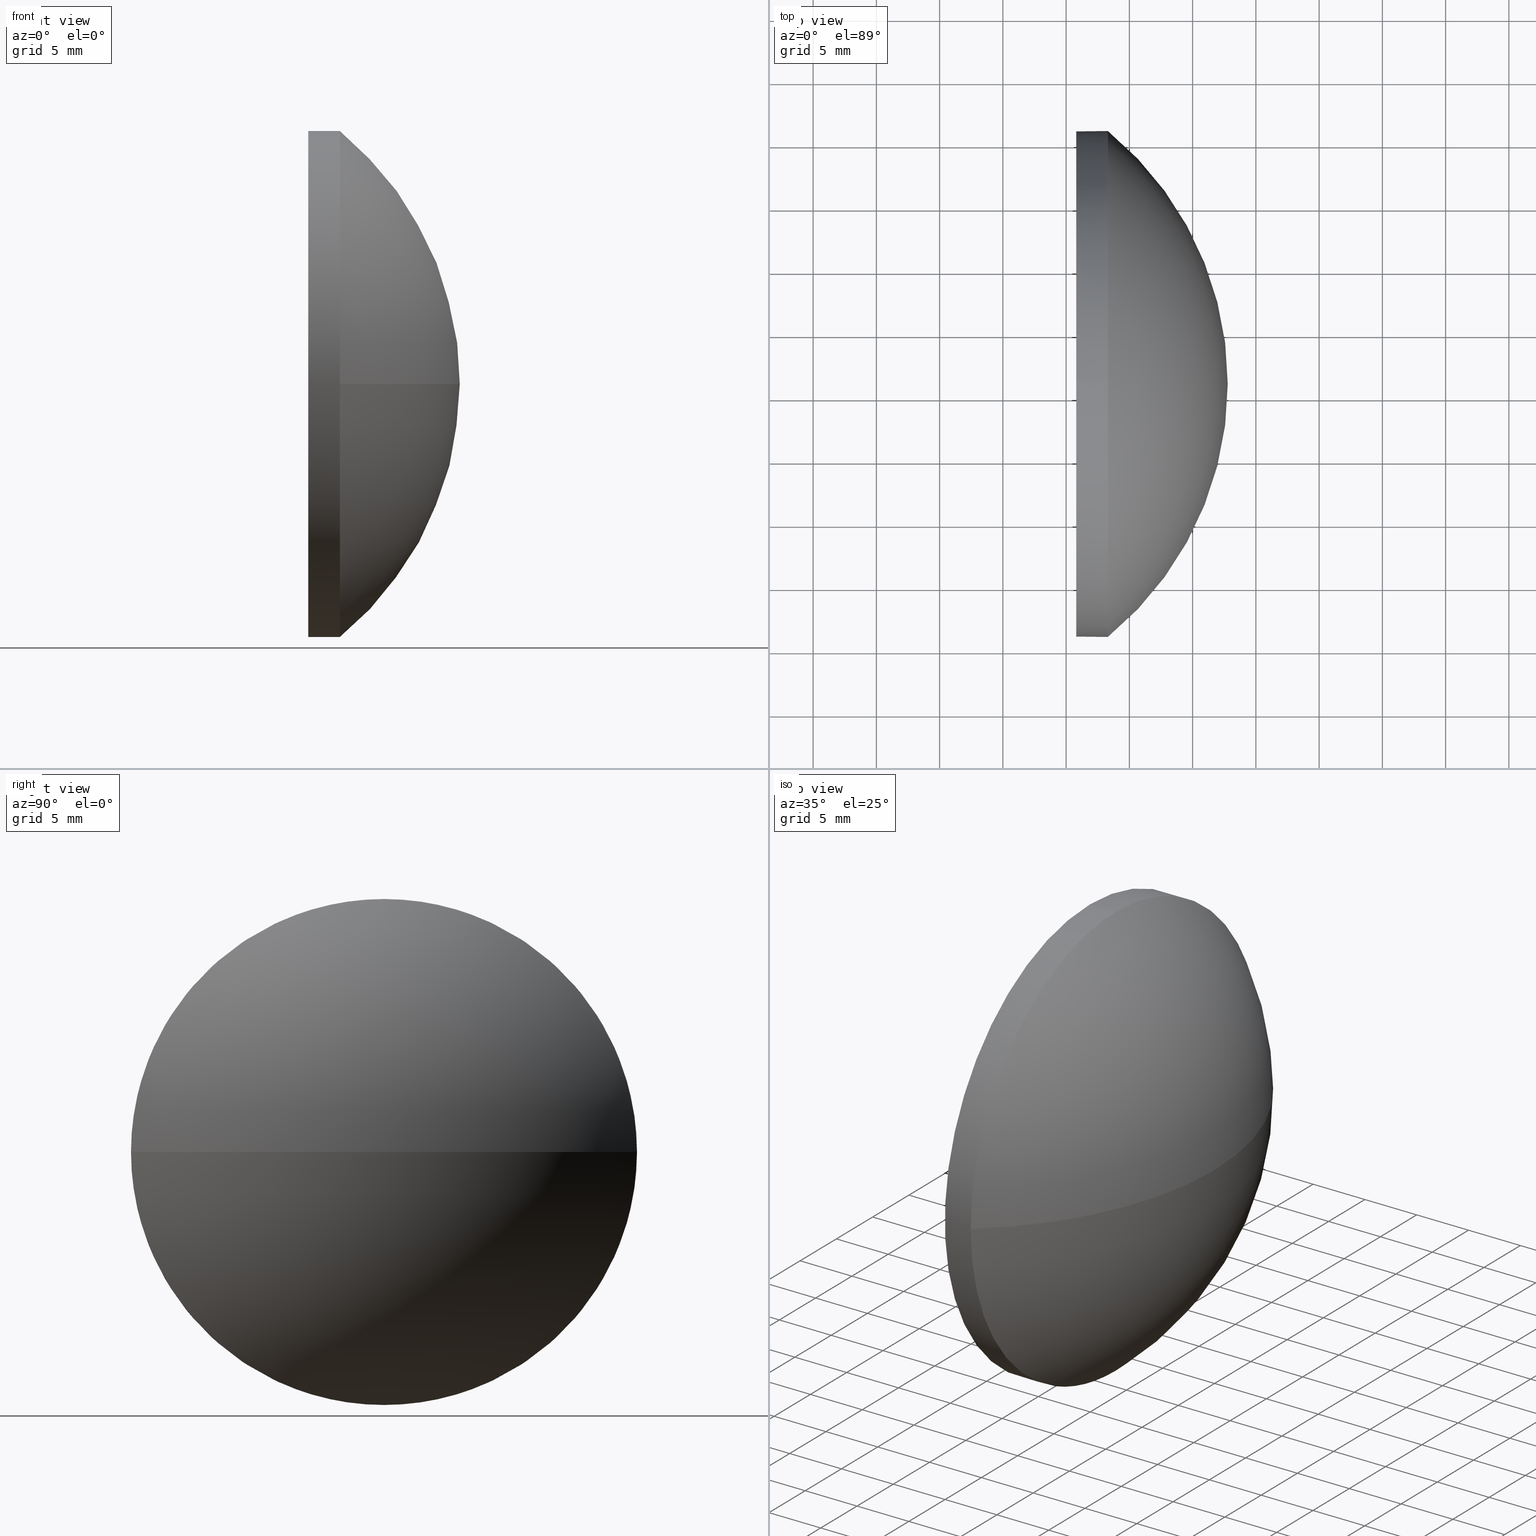
[diagram: canonical four-view strip — front | top / right | iso, engineering-drawing reading convention]
A machine part, canonical four-view strip (front | top / right | iso — engineering-drawing reading convention). The complete STEP part file that produces these views, byte-faithful:
ISO-10303-21;
HEADER;
FILE_DESCRIPTION (( 'STEP AP214' ),
    '1' );
FILE_NAME ('100227.STEP',
    '2019-05-24T06:02:24',
    ( '' ),
    ( '' ),
    'SwSTEP 2.0',
    'SolidWorks 2016',
    '' );
FILE_SCHEMA (( 'AUTOMOTIVE_DESIGN' ));
ENDSEC;

DATA;
#1 = PLANE ( 'NONE',  #162 ) ;
#2 = ORIENTED_EDGE ( 'NONE', *, *, #22, .F. ) ;
#3 = CIRCLE ( 'NONE', #123, 19.99999999999999600 ) ;
#4 = ORIENTED_EDGE ( 'NONE', *, *, #97, .F. ) ;
#5 = DIRECTION ( 'NONE',  ( 0.0000000000000000000, 0.0000000000000000000, 1.000000000000000000 ) ) ;
#6 = DIRECTION ( 'NONE',  ( -1.000000000000000000, -0.0000000000000000000, -0.0000000000000000000 ) ) ;
#7 = ORIENTED_EDGE ( 'NONE', *, *, #97, .T. ) ;
#8 = LINE ( 'NONE', #29, #178 ) ;
#9 =( NAMED_UNIT ( * ) SI_UNIT ( $, .STERADIAN. ) SOLID_ANGLE_UNIT ( ) );
#10 = DIRECTION ( 'NONE',  ( -1.000000000000000000, -0.0000000000000000000, -0.0000000000000000000 ) ) ;
#11 = CARTESIAN_POINT ( 'NONE',  ( 0.0000000000000000000, 0.0000000000000000000, 0.0000000000000000000 ) ) ;
#12 = ADVANCED_FACE ( 'NONE', ( #87 ), #143, .T. ) ;
#13 =( LENGTH_UNIT ( ) NAMED_UNIT ( * ) SI_UNIT ( .MILLI., .METRE. ) );
#14 = VERTEX_POINT ( 'NONE', #173 ) ;
#15 = EDGE_LOOP ( 'NONE', ( #4, #23, #170, #124, #2 ) ) ;
#16 = DIRECTION ( 'NONE',  ( -0.0000000000000000000, 0.0000000000000000000, 1.000000000000000000 ) ) ;
#17 = DIRECTION ( 'NONE',  ( -1.000000000000000000, -0.0000000000000000000, -0.0000000000000000000 ) ) ;
#18 = DIRECTION ( 'NONE',  ( 0.0000000000000000000, 0.0000000000000000000, 1.000000000000000000 ) ) ;
#19 = AXIS2_PLACEMENT_3D ( 'NONE', #63, #17, #118 ) ;
#20 = VECTOR ( 'NONE', #6, 1000.000000000000000 ) ;
#21 = FILL_AREA_STYLE_COLOUR ( '', #186 ) ;
#22 = EDGE_CURVE ( 'NONE', #151, #144, #122, .T. ) ;
#23 = ORIENTED_EDGE ( 'NONE', *, *, #70, .T. ) ;
#24 = PRESENTATION_STYLE_ASSIGNMENT (( #129 ) ) ;
#25 = APPLICATION_PROTOCOL_DEFINITION ( 'draft international standard', 'automotive_design', 1998, #179 ) ;
#26 = CARTESIAN_POINT ( 'NONE',  ( 426.9406855136076000, 15.96846071978551300, 0.0000000000000000000 ) ) ;
#27 = ORIENTED_EDGE ( 'NONE', *, *, #94, .F. ) ;
#28 = CARTESIAN_POINT ( 'NONE',  ( 426.9406855136076000, 15.96846071978551300, 0.0000000000000000000 ) ) ;
#29 = CARTESIAN_POINT ( 'NONE',  ( 436.8327783161237200, 15.96846071978552600, 19.99999999999999600 ) ) ;
#30 = FILL_AREA_STYLE_COLOUR ( '', #68 ) ;
#31 = CLOSED_SHELL ( 'NONE', ( #167, #12, #98, #136, #35 ) ) ;
#32 = AXIS2_PLACEMENT_3D ( 'NONE', #28, #146, #88 ) ;
#33 = FACE_OUTER_BOUND ( 'NONE', #96, .T. ) ;
#34 = DIRECTION ( 'NONE',  ( 0.0000000000000000000, 0.0000000000000000000, 1.000000000000000000 ) ) ;
#35 = ADVANCED_FACE ( 'NONE', ( #42 ), #1, .F. ) ;
#36 = CARTESIAN_POINT ( 'NONE',  ( 440.7977319271096800, 15.96846071978552600, 19.99999999999999600 ) ) ;
#37 = AXIS2_PLACEMENT_3D ( 'NONE', #176, #119, #5 ) ;
#38 = PRESENTATION_STYLE_ASSIGNMENT (( #53 ) ) ;
#39 = ORIENTED_EDGE ( 'NONE', *, *, #83, .T. ) ;
#40 = ORIENTED_EDGE ( 'NONE', *, *, #80, .F. ) ;
#41 = AXIS2_PLACEMENT_3D ( 'NONE', #77, #10, #166 ) ;
#42 = FACE_OUTER_BOUND ( 'NONE', #172, .T. ) ;
#43 = FACE_OUTER_BOUND ( 'NONE', #15, .T. ) ;
#44 = CARTESIAN_POINT ( 'NONE',  ( 440.7977319271096800, 15.96846071978552600, 0.0000000000000000000 ) ) ;
#45 = CARTESIAN_POINT ( 'NONE',  ( 440.7977319271096800, 15.96846071978552600, 0.0000000000000000000 ) ) ;
#46 = CARTESIAN_POINT ( 'NONE',  ( 443.2977319271096800, 15.96846071978552600, 19.99999999999999600 ) ) ;
#47 = DIRECTION ( 'NONE',  ( 0.0000000000000000000, 0.0000000000000000000, 1.000000000000000000 ) ) ;
#48 = CARTESIAN_POINT ( 'NONE',  ( 436.8327783161237200, 15.96846071978552900, -19.99999999999999600 ) ) ;
#49 = AXIS2_PLACEMENT_3D ( 'NONE', #45, #62, #18 ) ;
#50 = UNCERTAINTY_MEASURE_WITH_UNIT (LENGTH_MEASURE( 1.000000000000000100E-005 ), #13, 'distance_accuracy_value', 'NONE');
#51 = SPHERICAL_SURFACE ( 'NONE', #32, 25.83704641350210800 ) ;
#52 = VERTEX_POINT ( 'NONE', #46 ) ;
#53 = SURFACE_STYLE_USAGE ( .BOTH. , #139 ) ;
#54 =( GEOMETRIC_REPRESENTATION_CONTEXT ( 3 ) GLOBAL_UNCERTAINTY_ASSIGNED_CONTEXT ( ( #169 ) ) GLOBAL_UNIT_ASSIGNED_CONTEXT ( ( #135, #185, #9 ) ) REPRESENTATION_CONTEXT ( 'NONE', 'WORKASPACE' ) );
#55 = EDGE_CURVE ( 'NONE', #82, #14, #99, .T. ) ;
#56 = DIRECTION ( 'NONE',  ( 1.000000000000000000, 0.0000000000000000000, 0.0000000000000000000 ) ) ;
#57 = PRODUCT_DEFINITION_SHAPE ( 'NONE', 'NONE',  #142 ) ;
#58 = ORIENTED_EDGE ( 'NONE', *, *, #22, .T. ) ;
#59 = CIRCLE ( 'NONE', #37, 19.99999999999999600 ) ;
#60 = DIRECTION ( 'NONE',  ( -0.0000000000000000000, 0.0000000000000000000, -1.000000000000000000 ) ) ;
#61 = STYLED_ITEM ( 'NONE', ( #24 ), #103 ) ;
#62 = DIRECTION ( 'NONE',  ( -1.000000000000000000, -0.0000000000000000000, -0.0000000000000000000 ) ) ;
#63 = CARTESIAN_POINT ( 'NONE',  ( 443.2977319271096800, 15.96846071978552600, 0.0000000000000000000 ) ) ;
#64 =( NAMED_UNIT ( * ) PLANE_ANGLE_UNIT ( ) SI_UNIT ( $, .RADIAN. ) );
#65 = PRODUCT_CONTEXT ( 'NONE', #121, 'mechanical' ) ;
#66 =( NAMED_UNIT ( * ) PLANE_ANGLE_UNIT ( ) SI_UNIT ( $, .RADIAN. ) );
#67 = PRODUCT_DEFINITION_CONTEXT ( 'detailed design', #179, 'design' ) ;
#68 = COLOUR_RGB ( '',1.000000000000000000, 1.000000000000000000, 1.000000000000000000 ) ;
#69 = MECHANICAL_DESIGN_GEOMETRIC_PRESENTATION_REPRESENTATION (  '', ( #61 ), #81 ) ;
#70 = EDGE_CURVE ( 'NONE', #71, #14, #182, .T. ) ;
#71 = VERTEX_POINT ( 'NONE', #131 ) ;
#72 = DIRECTION ( 'NONE',  ( 0.0000000000000000000, 1.224646799147353200E-016, -1.000000000000000000 ) ) ;
#73 = ORIENTED_EDGE ( 'NONE', *, *, #80, .T. ) ;
#74 = CARTESIAN_POINT ( 'NONE',  ( 443.2977319271096800, 35.96846071978551900, 0.0000000000000000000 ) ) ;
#75 = ORIENTED_EDGE ( 'NONE', *, *, #150, .F. ) ;
#76 = CYLINDRICAL_SURFACE ( 'NONE', #174, 19.99999999999999600 ) ;
#77 = CARTESIAN_POINT ( 'NONE',  ( 443.2977319271096800, 15.96846071978552600, 0.0000000000000000000 ) ) ;
#78 = EDGE_LOOP ( 'NONE', ( #117, #73, #27, #156 ) ) ;
#79 = DIRECTION ( 'NONE',  ( 0.0000000000000000000, 0.0000000000000000000, 1.000000000000000000 ) ) ;
#80 = EDGE_CURVE ( 'NONE', #82, #89, #177, .T. ) ;
#81 =( GEOMETRIC_REPRESENTATION_CONTEXT ( 3 ) GLOBAL_UNCERTAINTY_ASSIGNED_CONTEXT ( ( #155 ) ) GLOBAL_UNIT_ASSIGNED_CONTEXT ( ( #120, #64, #148 ) ) REPRESENTATION_CONTEXT ( 'NONE', 'WORKASPACE' ) );
#82 = VERTEX_POINT ( 'NONE', #93 ) ;
#83 = EDGE_CURVE ( 'NONE', #144, #151, #164, .T. ) ;
#84 = DIRECTION ( 'NONE',  ( -1.000000000000000000, -0.0000000000000000000, -0.0000000000000000000 ) ) ;
#85 = ORIENTED_EDGE ( 'NONE', *, *, #55, .T. ) ;
#86 = DIRECTION ( 'NONE',  ( 0.0000000000000000000, 0.0000000000000000000, 1.000000000000000000 ) ) ;
#87 = FACE_OUTER_BOUND ( 'NONE', #95, .T. ) ;
#88 = DIRECTION ( 'NONE',  ( 0.0000000000000000000, 1.000000000000000000, 0.0000000000000000000 ) ) ;
#89 = VERTEX_POINT ( 'NONE', #74 ) ;
#90 = SURFACE_STYLE_FILL_AREA ( #92 ) ;
#91 = PRESENTATION_LAYER_ASSIGNMENT (  '', '', ( #111 ) ) ;
#92 = FILL_AREA_STYLE ('',( #30 ) ) ;
#93 = CARTESIAN_POINT ( 'NONE',  ( 452.7777319271097000, 15.96846071978551300, 0.0000000000000000000 ) ) ;
#94 = EDGE_CURVE ( 'NONE', #52, #89, #59, .T. ) ;
#95 = EDGE_LOOP ( 'NONE', ( #40, #85, #114, #75 ) ) ;
#96 = EDGE_LOOP ( 'NONE', ( #165, #7, #110, #132, #183 ) ) ;
#97 = EDGE_CURVE ( 'NONE', #71, #151, #138, .T. ) ;
#98 = ADVANCED_FACE ( 'NONE', ( #168 ), #51, .T. ) ;
#99 = CIRCLE ( 'NONE', #171, 25.83704641350211200 ) ;
#100 = AXIS2_PLACEMENT_3D ( 'NONE', #145, #160, #86 ) ;
#101 = DIRECTION ( 'NONE',  ( 1.000000000000000000, 0.0000000000000000000, 0.0000000000000000000 ) ) ;
#102 = AXIS2_PLACEMENT_3D ( 'NONE', #109, #84, #34 ) ;
#103 = MANIFOLD_SOLID_BREP ( '��ת1', #31 ) ;
#104 = CARTESIAN_POINT ( 'NONE',  ( 426.9406855136076000, 15.96846071978551300, 0.0000000000000000000 ) ) ;
#105 = DIRECTION ( 'NONE',  ( 0.0000000000000000000, 0.0000000000000000000, -1.000000000000000000 ) ) ;
#106 = AXIS2_PLACEMENT_3D ( 'NONE', #11, #149, #56 ) ;
#107 = PRODUCT_RELATED_PRODUCT_CATEGORY ( 'part', '', ( #158 ) ) ;
#108 = AXIS2_PLACEMENT_3D ( 'NONE', #104, #16, #130 ) ;
#109 = CARTESIAN_POINT ( 'NONE',  ( 436.8327783161237200, 15.96846071978552600, 0.0000000000000000000 ) ) ;
#110 = ORIENTED_EDGE ( 'NONE', *, *, #83, .F. ) ;
#111 = STYLED_ITEM ( 'NONE', ( #38 ), #115 ) ;
#112 = SURFACE_STYLE_FILL_AREA ( #134 ) ;
#113 = DIRECTION ( 'NONE',  ( -1.000000000000000000, -0.0000000000000000000, -0.0000000000000000000 ) ) ;
#114 = ORIENTED_EDGE ( 'NONE', *, *, #70, .F. ) ;
#115 = ADVANCED_BREP_SHAPE_REPRESENTATION ( '100227', ( #103, #106 ), #54 ) ;
#116 = EDGE_CURVE ( 'NONE', #52, #144, #8, .T. ) ;
#117 = ORIENTED_EDGE ( 'NONE', *, *, #55, .F. ) ;
#118 = DIRECTION ( 'NONE',  ( 0.0000000000000000000, 0.0000000000000000000, 1.000000000000000000 ) ) ;
#119 = DIRECTION ( 'NONE',  ( -1.000000000000000000, -0.0000000000000000000, -0.0000000000000000000 ) ) ;
#120 =( LENGTH_UNIT ( ) NAMED_UNIT ( * ) SI_UNIT ( .MILLI., .METRE. ) );
#121 = APPLICATION_CONTEXT ( 'automotive_design' ) ;
#122 = CIRCLE ( 'NONE', #100, 19.99999999999999600 ) ;
#123 = AXIS2_PLACEMENT_3D ( 'NONE', #152, #113, #79 ) ;
#124 = ORIENTED_EDGE ( 'NONE', *, *, #116, .T. ) ;
#125 = MECHANICAL_DESIGN_GEOMETRIC_PRESENTATION_REPRESENTATION (  '', ( #111 ), #137 ) ;
#126 = CARTESIAN_POINT ( 'NONE',  ( 426.9406855136076000, 15.96846071978551300, 0.0000000000000000000 ) ) ;
#127 = AXIS2_PLACEMENT_3D ( 'NONE', #26, #60, #157 ) ;
#128 = CARTESIAN_POINT ( 'NONE',  ( 436.8327783161237200, 15.96846071978552600, 0.0000000000000000000 ) ) ;
#129 = SURFACE_STYLE_USAGE ( .BOTH. , #163 ) ;
#130 = DIRECTION ( 'NONE',  ( 1.000000000000000000, 0.0000000000000000000, 0.0000000000000000000 ) ) ;
#131 = CARTESIAN_POINT ( 'NONE',  ( 443.2977319271096800, 15.96846071978552900, -19.99999999999999600 ) ) ;
#132 = ORIENTED_EDGE ( 'NONE', *, *, #116, .F. ) ;
#133 = SHAPE_DEFINITION_REPRESENTATION ( #57, #115 ) ;
#134 = FILL_AREA_STYLE ('',( #21 ) ) ;
#135 =( LENGTH_UNIT ( ) NAMED_UNIT ( * ) SI_UNIT ( .MILLI., .METRE. ) );
#136 = ADVANCED_FACE ( 'NONE', ( #43 ), #76, .T. ) ;
#137 =( GEOMETRIC_REPRESENTATION_CONTEXT ( 3 ) GLOBAL_UNCERTAINTY_ASSIGNED_CONTEXT ( ( #50 ) ) GLOBAL_UNIT_ASSIGNED_CONTEXT ( ( #13, #66, #141 ) ) REPRESENTATION_CONTEXT ( 'NONE', 'WORKASPACE' ) );
#138 = LINE ( 'NONE', #48, #20 ) ;
#139 = SURFACE_SIDE_STYLE ('',( #112 ) ) ;
#140 = EDGE_CURVE ( 'NONE', #14, #52, #3, .T. ) ;
#141 =( NAMED_UNIT ( * ) SI_UNIT ( $, .STERADIAN. ) SOLID_ANGLE_UNIT ( ) );
#142 = PRODUCT_DEFINITION ( 'δ֪', '', #153, #67 ) ;
#143 = SPHERICAL_SURFACE ( 'NONE', #127, 25.83704641350210800 ) ;
#144 = VERTEX_POINT ( 'NONE', #36 ) ;
#145 = CARTESIAN_POINT ( 'NONE',  ( 440.7977319271096800, 15.96846071978552600, 0.0000000000000000000 ) ) ;
#146 = DIRECTION ( 'NONE',  ( -0.0000000000000000000, 0.0000000000000000000, -1.000000000000000000 ) ) ;
#147 = DIRECTION ( 'NONE',  ( -1.000000000000000000, -0.0000000000000000000, -0.0000000000000000000 ) ) ;
#148 =( NAMED_UNIT ( * ) SI_UNIT ( $, .STERADIAN. ) SOLID_ANGLE_UNIT ( ) );
#149 = DIRECTION ( 'NONE',  ( 0.0000000000000000000, 0.0000000000000000000, 1.000000000000000000 ) ) ;
#150 = EDGE_CURVE ( 'NONE', #89, #71, #184, .T. ) ;
#151 = VERTEX_POINT ( 'NONE', #181 ) ;
#152 = CARTESIAN_POINT ( 'NONE',  ( 443.2977319271096800, 15.96846071978552600, 0.0000000000000000000 ) ) ;
#153 = PRODUCT_DEFINITION_FORMATION_WITH_SPECIFIED_SOURCE ( '�κ�', '', #158, .NOT_KNOWN. ) ;
#154 = APPLICATION_PROTOCOL_DEFINITION ( 'draft international standard', 'automotive_design', 1998, #121 ) ;
#155 = UNCERTAINTY_MEASURE_WITH_UNIT (LENGTH_MEASURE( 1.000000000000000100E-005 ), #120, 'distance_accuracy_value', 'NONE');
#156 = ORIENTED_EDGE ( 'NONE', *, *, #140, .F. ) ;
#157 = DIRECTION ( 'NONE',  ( 0.0000000000000000000, 1.000000000000000000, 0.0000000000000000000 ) ) ;
#158 = PRODUCT ( '100227', '100227', '', ( #65 ) ) ;
#159 = CYLINDRICAL_SURFACE ( 'NONE', #102, 19.99999999999999600 ) ;
#160 = DIRECTION ( 'NONE',  ( -1.000000000000000000, -0.0000000000000000000, -0.0000000000000000000 ) ) ;
#161 = DIRECTION ( 'NONE',  ( -1.000000000000000000, -0.0000000000000000000, -0.0000000000000000000 ) ) ;
#162 = AXIS2_PLACEMENT_3D ( 'NONE', #44, #101, #105 ) ;
#163 = SURFACE_SIDE_STYLE ('',( #90 ) ) ;
#164 = CIRCLE ( 'NONE', #49, 19.99999999999999600 ) ;
#165 = ORIENTED_EDGE ( 'NONE', *, *, #150, .T. ) ;
#166 = DIRECTION ( 'NONE',  ( 0.0000000000000000000, 0.0000000000000000000, 1.000000000000000000 ) ) ;
#167 = ADVANCED_FACE ( 'NONE', ( #33 ), #159, .T. ) ;
#168 = FACE_OUTER_BOUND ( 'NONE', #78, .T. ) ;
#169 = UNCERTAINTY_MEASURE_WITH_UNIT (LENGTH_MEASURE( 1.000000000000000100E-005 ), #135, 'distance_accuracy_value', 'NONE');
#170 = ORIENTED_EDGE ( 'NONE', *, *, #140, .T. ) ;
#171 = AXIS2_PLACEMENT_3D ( 'NONE', #126, #72, #175 ) ;
#172 = EDGE_LOOP ( 'NONE', ( #39, #58 ) ) ;
#173 = CARTESIAN_POINT ( 'NONE',  ( 443.2977319271096800, -4.031539280214476900, -2.449293598294705300E-015 ) ) ;
#174 = AXIS2_PLACEMENT_3D ( 'NONE', #128, #147, #47 ) ;
#175 = DIRECTION ( 'NONE',  ( 0.0000000000000000000, 1.000000000000000000, 1.224646799147353000E-016 ) ) ;
#176 = CARTESIAN_POINT ( 'NONE',  ( 443.2977319271096800, 15.96846071978552600, 0.0000000000000000000 ) ) ;
#177 = CIRCLE ( 'NONE', #108, 25.83704641350209700 ) ;
#178 = VECTOR ( 'NONE', #161, 1000.000000000000000 ) ;
#179 = APPLICATION_CONTEXT ( 'automotive_design' ) ;
#180 = PRESENTATION_LAYER_ASSIGNMENT (  '', '', ( #61 ) ) ;
#181 = CARTESIAN_POINT ( 'NONE',  ( 440.7977319271096800, 15.96846071978552900, -19.99999999999999600 ) ) ;
#182 = CIRCLE ( 'NONE', #19, 19.99999999999999600 ) ;
#183 = ORIENTED_EDGE ( 'NONE', *, *, #94, .T. ) ;
#184 = CIRCLE ( 'NONE', #41, 19.99999999999999600 ) ;
#185 =( NAMED_UNIT ( * ) PLANE_ANGLE_UNIT ( ) SI_UNIT ( $, .RADIAN. ) );
#186 = COLOUR_RGB ( '',1.000000000000000000, 1.000000000000000000, 1.000000000000000000 ) ;
ENDSEC;
END-ISO-10303-21;
